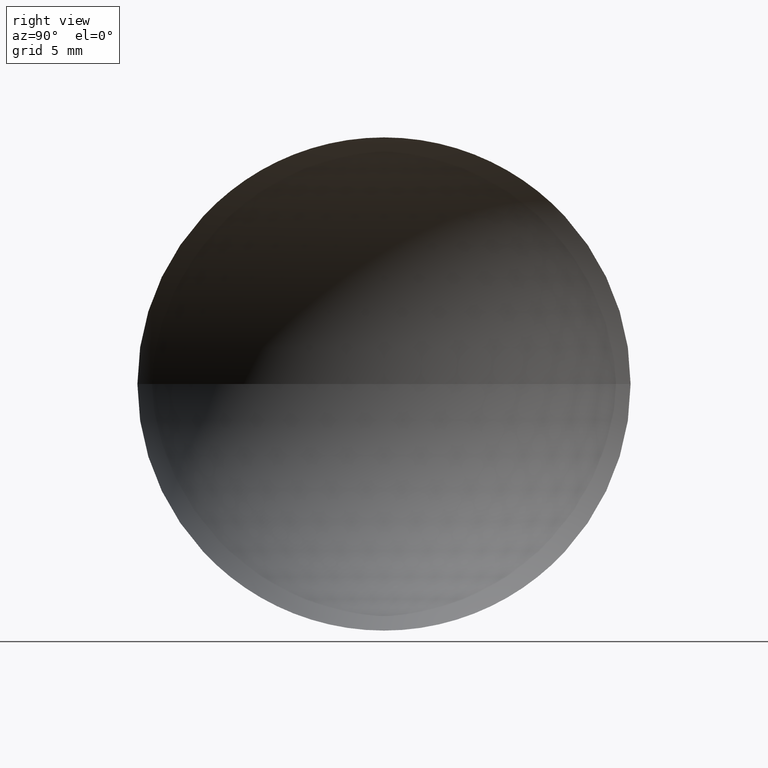
[diagram: clean part render]
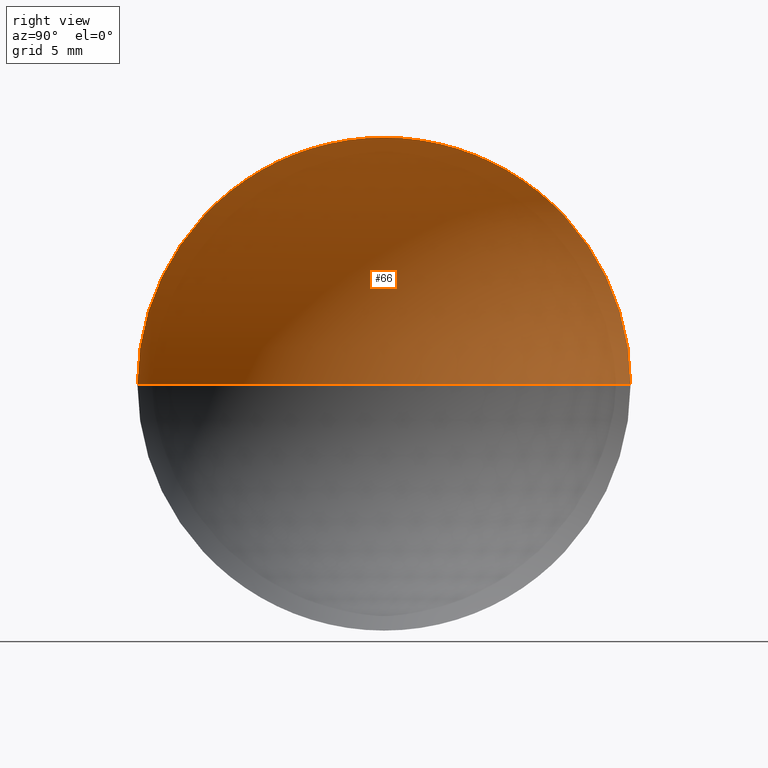
[diagram: same view with one face highlighted and labeled with its STEP entity id]
A machine part, right view. The second image highlights one B-rep face of the part: STEP entity #66.
In plain terms, the highlighted spherical surface has radius 13.1089 mm.
Its self-contained STEP definition (entity closure, byte-faithful):
#11 = EDGE_CURVE ( 'NONE', #109, #22, #104, .T. ) ;
#12 = CARTESIAN_POINT ( 'NONE',  ( 72.46712028902548800, 32.57872591329309800, 0.0000000000000000000 ) ) ;
#13 = CARTESIAN_POINT ( 'NONE',  ( 68.51819015802109900, 20.07872591329309500, 0.0000000000000000000 ) ) ;
#14 = DIRECTION ( 'NONE',  ( -5.943490924618453600E-032, -1.224646799147353200E-016, 1.000000000000000000 ) ) ;
#18 = EDGE_LOOP ( 'NONE', ( #134, #132, #54 ) ) ;
#19 = AXIS2_PLACEMENT_3D ( 'NONE', #137, #14, #72 ) ;
#22 = VERTEX_POINT ( 'NONE', #83 ) ;
#47 = AXIS2_PLACEMENT_3D ( 'NONE', #12, #99, #101 ) ;
#54 = ORIENTED_EDGE ( 'NONE', *, *, #11, .T. ) ;
#57 = CIRCLE ( 'NONE', #126, 12.50000000000000400 ) ;
#65 = SPHERICAL_SURFACE ( 'NONE', #47, 13.10893013100436900 ) ;
#66 = ADVANCED_FACE ( 'NONE', ( #68 ), #65, .F. ) ;
#68 = FACE_OUTER_BOUND ( 'NONE', #18, .T. ) ;
#72 = DIRECTION ( 'NONE',  ( 0.0000000000000000000, -1.000000000000000000, -1.224646799147353000E-016 ) ) ;
#80 = CARTESIAN_POINT ( 'NONE',  ( 72.46712028902548800, 32.57872591329309800, 0.0000000000000000000 ) ) ;
#83 = CARTESIAN_POINT ( 'NONE',  ( 59.35819015802113100, 32.57872591329310600, 0.0000000000000000000 ) ) ;
#94 = CIRCLE ( 'NONE', #19, 13.10893013100436900 ) ;
#95 = EDGE_CURVE ( 'NONE', #109, #124, #57, .T. ) ;
#99 = DIRECTION ( 'NONE',  ( 0.0000000000000000000, 0.0000000000000000000, 1.000000000000000000 ) ) ;
#101 = DIRECTION ( 'NONE',  ( 0.0000000000000000000, -1.000000000000000000, 0.0000000000000000000 ) ) ;
#103 = DIRECTION ( 'NONE',  ( 0.0000000000000000000, -1.000000000000000000, 0.0000000000000000000 ) ) ;
#104 = CIRCLE ( 'NONE', #121, 13.10893013100436600 ) ;
#105 = CARTESIAN_POINT ( 'NONE',  ( 68.51819015802109900, 45.07872591329309100, 1.530808498934190500E-015 ) ) ;
#106 = DIRECTION ( 'NONE',  ( -1.000000000000000000, 4.853228644174421400E-016, -0.0000000000000000000 ) ) ;
#109 = VERTEX_POINT ( 'NONE', #13 ) ;
#110 = EDGE_CURVE ( 'NONE', #124, #22, #94, .T. ) ;
#113 = DIRECTION ( 'NONE',  ( -1.000000000000000000, 0.0000000000000000000, 0.0000000000000000000 ) ) ;
#121 = AXIS2_PLACEMENT_3D ( 'NONE', #80, #125, #113 ) ;
#124 = VERTEX_POINT ( 'NONE', #105 ) ;
#125 = DIRECTION ( 'NONE',  ( 0.0000000000000000000, -0.0000000000000000000, -1.000000000000000000 ) ) ;
#126 = AXIS2_PLACEMENT_3D ( 'NONE', #129, #106, #103 ) ;
#129 = CARTESIAN_POINT ( 'NONE',  ( 68.51819015802109900, 32.57872591329309100, 0.0000000000000000000 ) ) ;
#132 = ORIENTED_EDGE ( 'NONE', *, *, #95, .F. ) ;
#134 = ORIENTED_EDGE ( 'NONE', *, *, #110, .F. ) ;
#137 = CARTESIAN_POINT ( 'NONE',  ( 72.46712028902548800, 32.57872591329309800, 0.0000000000000000000 ) ) ;